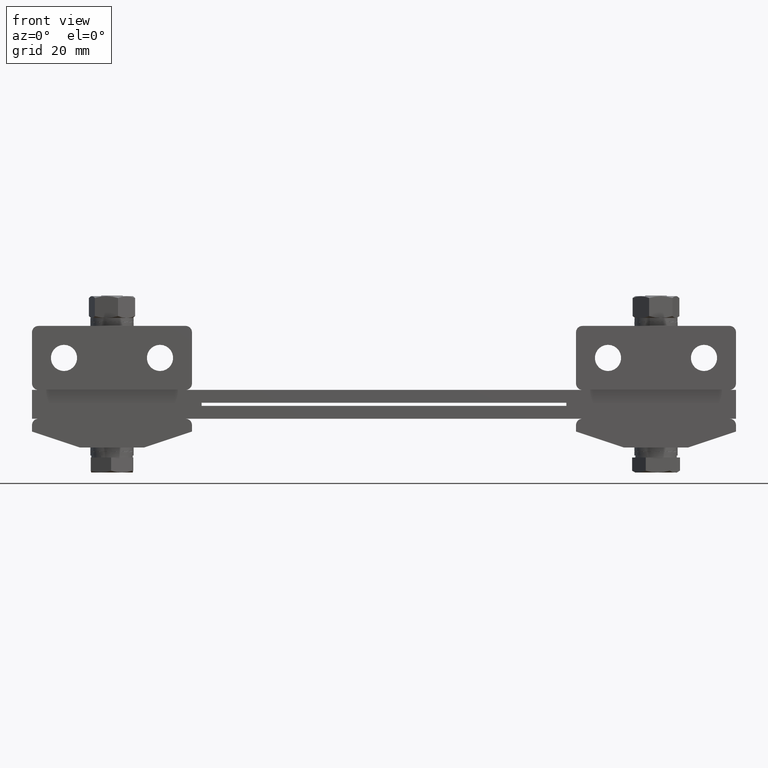
[diagram: clean part render]
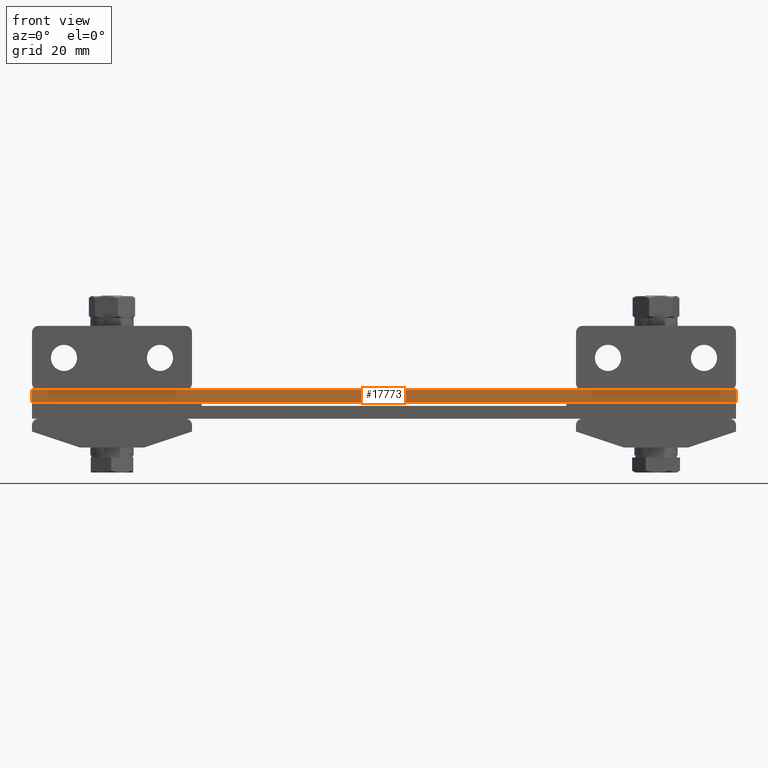
[diagram: same view with one face highlighted and labeled with its STEP entity id]
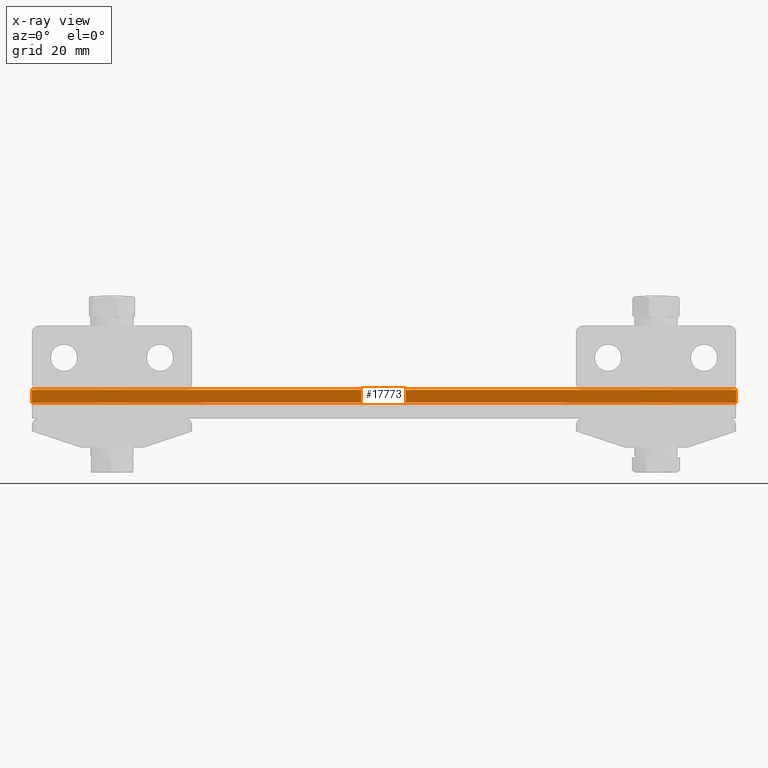
[diagram: x-ray of the same camera — body ghosted, the highlighted face saturated]
A machine part, front view. The second image highlights one B-rep face of the part: STEP entity #17773.
The next image is the same camera in x-ray: the body ghosted, the highlighted face saturated — about 0% of this face is hidden behind the body in this view.
In plain terms, the highlighted planar face has unit normal (0, 1, 0).
Its self-contained STEP definition (entity closure, byte-faithful):
#343 = CARTESIAN_POINT ( 'NONE',  ( -110.0000000000000000, -12.50000000000000000, 5.000000000000000000 ) ) ;
#571 = VECTOR ( 'NONE', #5434, 1000.000000000000000 ) ;
#1550 = LINE ( 'NONE', #4899, #18319 ) ;
#2520 = EDGE_CURVE ( 'NONE', #20853, #20282, #4203, .T. ) ;
#3016 = CARTESIAN_POINT ( 'NONE',  ( -110.0000000000000000, -12.50000000000000000, 9.000000000000000000 ) ) ;
#3447 = DIRECTION ( 'NONE',  ( 1.000000000000000000, 0.0000000000000000000, 0.0000000000000000000 ) ) ;
#3558 = AXIS2_PLACEMENT_3D ( 'NONE', #5933, #15404, #7312 ) ;
#3781 = CARTESIAN_POINT ( 'NONE',  ( 110.0000000000000000, -12.50000000000000000, 9.000000000000000000 ) ) ;
#4203 = LINE ( 'NONE', #8766, #10044 ) ;
#4339 = CARTESIAN_POINT ( 'NONE',  ( -110.0000000000000000, -12.50000000000000000, 5.000000000000000000 ) ) ;
#4899 = CARTESIAN_POINT ( 'NONE',  ( -110.0000000000000000, -12.50000000000000000, 9.000000000000000000 ) ) ;
#5434 = DIRECTION ( 'NONE',  ( 0.0000000000000000000, 0.0000000000000000000, -1.000000000000000000 ) ) ;
#5933 = CARTESIAN_POINT ( 'NONE',  ( -110.0000000000000000, -12.50000000000000000, 9.000000000000000000 ) ) ;
#7232 = EDGE_CURVE ( 'NONE', #10897, #9820, #20605, .T. ) ;
#7312 = DIRECTION ( 'NONE',  ( 0.0000000000000000000, 0.0000000000000000000, 1.000000000000000000 ) ) ;
#8299 = CARTESIAN_POINT ( 'NONE',  ( 110.0000000000000000, -12.50000000000000000, 9.000000000000000000 ) ) ;
#8359 = EDGE_CURVE ( 'NONE', #20282, #9820, #18868, .T. ) ;
#8548 = ORIENTED_EDGE ( 'NONE', *, *, #7232, .F. ) ;
#8766 = CARTESIAN_POINT ( 'NONE',  ( -110.0000000000000000, -12.50000000000000000, 9.000000000000000000 ) ) ;
#9515 = EDGE_CURVE ( 'NONE', #20853, #10897, #1550, .T. ) ;
#9745 = VECTOR ( 'NONE', #19145, 1000.000000000000000 ) ;
#9820 = VERTEX_POINT ( 'NONE', #17158 ) ;
#10044 = VECTOR ( 'NONE', #16704, 1000.000000000000000 ) ;
#10897 = VERTEX_POINT ( 'NONE', #8299 ) ;
#11515 = FACE_OUTER_BOUND ( 'NONE', #19662, .T. ) ;
#12114 = ORIENTED_EDGE ( 'NONE', *, *, #9515, .F. ) ;
#12225 = PLANE ( 'NONE',  #3558 ) ;
#13237 = ORIENTED_EDGE ( 'NONE', *, *, #2520, .T. ) ;
#14688 = ORIENTED_EDGE ( 'NONE', *, *, #8359, .T. ) ;
#15404 = DIRECTION ( 'NONE',  ( 0.0000000000000000000, 1.000000000000000000, 0.0000000000000000000 ) ) ;
#16704 = DIRECTION ( 'NONE',  ( 0.0000000000000000000, 0.0000000000000000000, -1.000000000000000000 ) ) ;
#17158 = CARTESIAN_POINT ( 'NONE',  ( 110.0000000000000000, -12.50000000000000000, 5.000000000000000000 ) ) ;
#17773 = ADVANCED_FACE ( 'NONE', ( #11515 ), #12225, .F. ) ;
#18319 = VECTOR ( 'NONE', #3447, 1000.000000000000000 ) ;
#18868 = LINE ( 'NONE', #343, #9745 ) ;
#19145 = DIRECTION ( 'NONE',  ( 1.000000000000000000, 0.0000000000000000000, 0.0000000000000000000 ) ) ;
#19662 = EDGE_LOOP ( 'NONE', ( #14688, #8548, #12114, #13237 ) ) ;
#20282 = VERTEX_POINT ( 'NONE', #4339 ) ;
#20605 = LINE ( 'NONE', #3781, #571 ) ;
#20853 = VERTEX_POINT ( 'NONE', #3016 ) ;